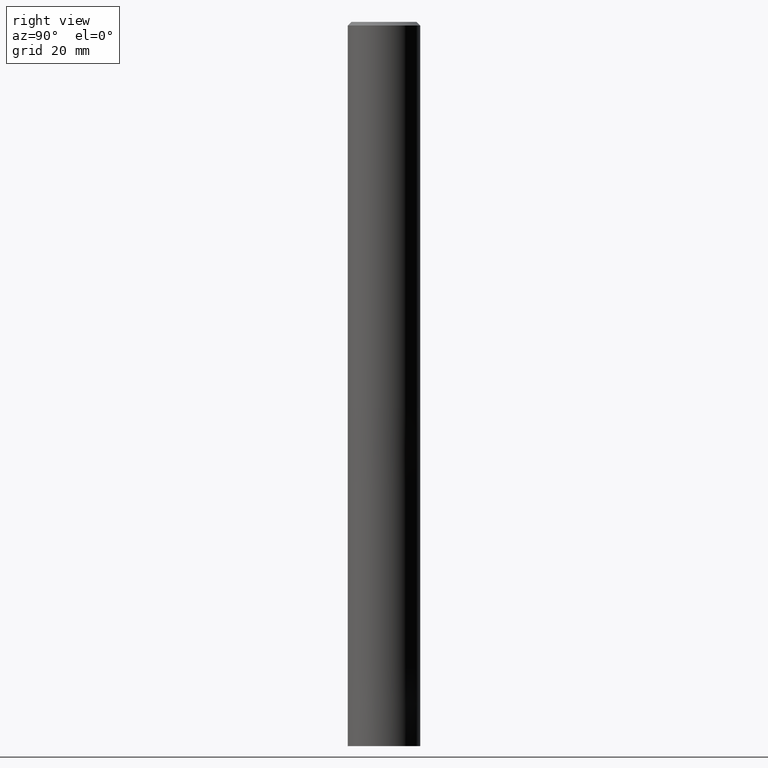
[diagram: clean part render]
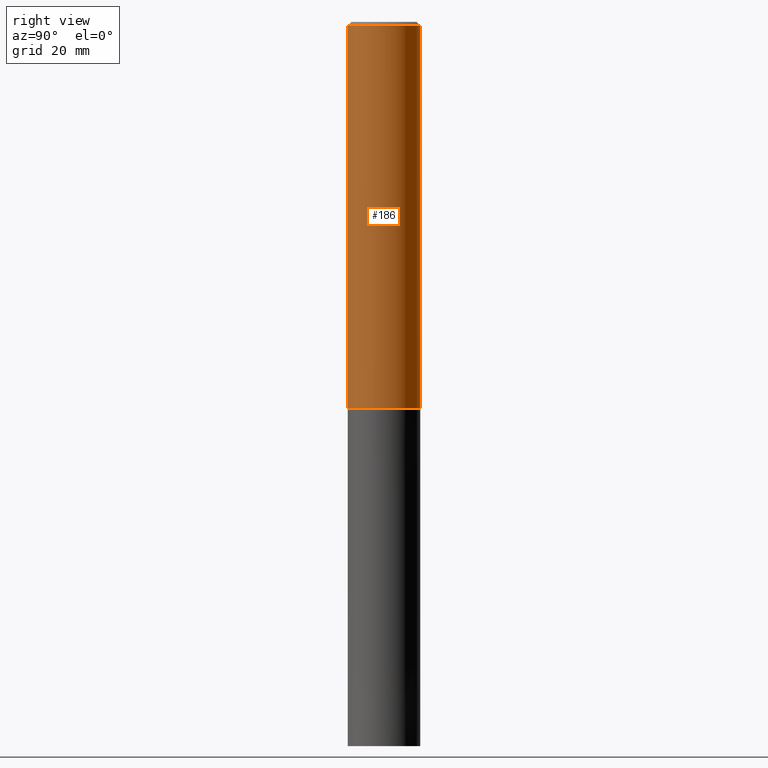
[diagram: same view with one face highlighted and labeled with its STEP entity id]
A machine part, right view. The second image highlights one B-rep face of the part: STEP entity #186.
In plain terms, the highlighted cylindrical surface (edge-blend (fillet) strip) has radius 6 mm, axis along (-0, -0, 1).
Its self-contained STEP definition (entity closure, byte-faithful):
#108=VERTEX_POINT('',#255);
#122=EDGE_CURVE('',#178,#164,#272,.T.);
#148=VERTEX_POINT('',#304);
#164=VERTEX_POINT('',#321);
#172=EDGE_CURVE('',#108,#148,#329,.T.);
#178=VERTEX_POINT('',#335);
#186=ADVANCED_FACE('',(#344),#345,.T.);
#198=EDGE_CURVE('',#178,#108,#358,.T.);
#210=EDGE_CURVE('',#148,#164,#372,.T.);
#255=CARTESIAN_POINT('',(0.0,6.0,-64.0));
#272=CIRCLE('',#433,6.0);
#304=CARTESIAN_POINT('',(7.34763812293426E-016,-6.0,-64.0));
#321=CARTESIAN_POINT('',(7.34763812293426E-016,-6.0,-0.600000000000001));
#329=CIRCLE('',#499,6.0);
#335=CARTESIAN_POINT('',(0.0,6.0,-0.600000000000001));
#344=FACE_OUTER_BOUND('',#520,.T.);
#345=CYLINDRICAL_SURFACE('',#521,6.0);
#358=LINE('',#539,#540);
#372=LINE('',#558,#559);
#433=AXIS2_PLACEMENT_3D('',#609,#610,#611);
#499=AXIS2_PLACEMENT_3D('',#683,#684,#685);
#520=EDGE_LOOP('',(#703,#704,#705,#706));
#521=AXIS2_PLACEMENT_3D('',#707,#708,#709);
#539=CARTESIAN_POINT('',(-7.34763812293426E-016,6.0,-32.3));
#540=VECTOR('',#718,1.0);
#558=CARTESIAN_POINT('',(7.34763812293426E-016,-6.0,-32.3));
#559=VECTOR('',#739,1.0);
#609=CARTESIAN_POINT('',(0.0,0.0,-0.600000000000001));
#610=DIRECTION('',(0.0,0.0,-1.0));
#611=DIRECTION('',(0.0,1.0,0.0));
#683=CARTESIAN_POINT('',(0.0,0.0,-64.0));
#684=DIRECTION('',(0.0,0.0,-1.0));
#685=DIRECTION('',(0.0,1.0,0.0));
#703=ORIENTED_EDGE('',*,*,#198,.F.);
#704=ORIENTED_EDGE('',*,*,#122,.T.);
#705=ORIENTED_EDGE('',*,*,#210,.F.);
#706=ORIENTED_EDGE('',*,*,#172,.F.);
#707=CARTESIAN_POINT('',(0.0,0.0,-32.3));
#708=DIRECTION('',(-0.0,-0.0,1.0));
#709=DIRECTION('',(0.0,1.0,0.0));
#718=DIRECTION('',(0.0,0.0,-1.0));
#739=DIRECTION('',(-0.0,-0.0,1.0));